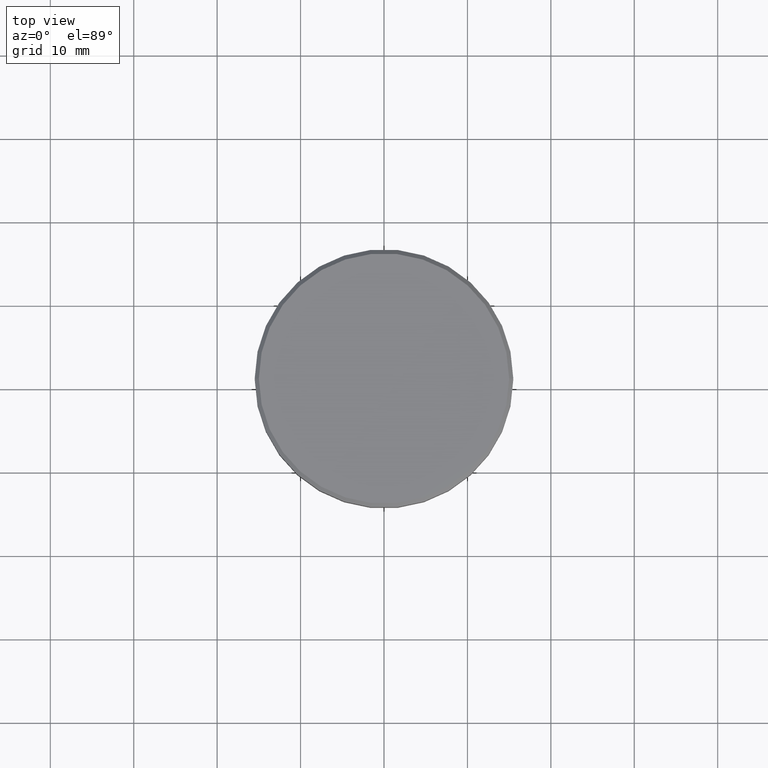
[diagram: clean part render]
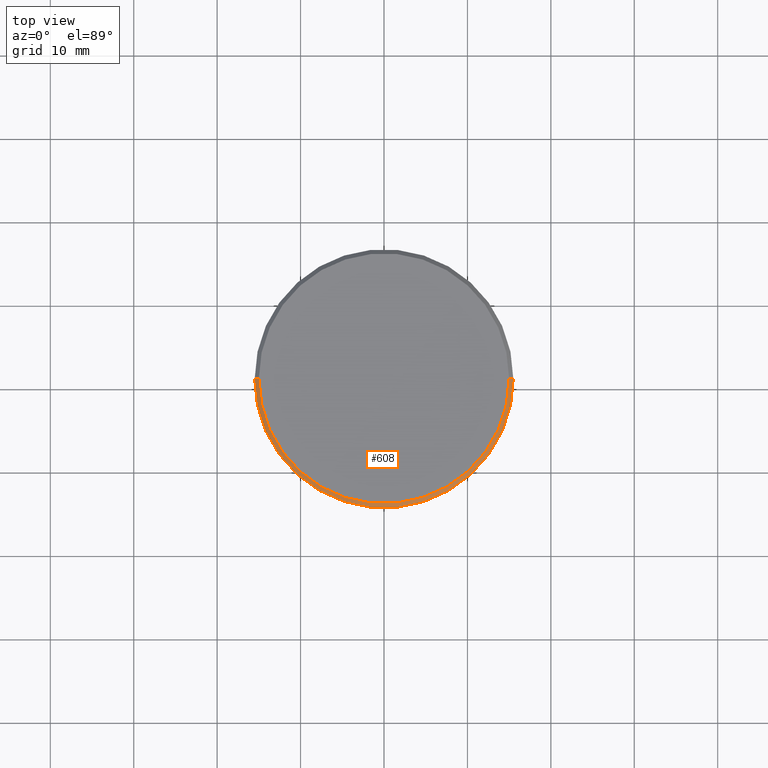
[diagram: same view with one face highlighted and labeled with its STEP entity id]
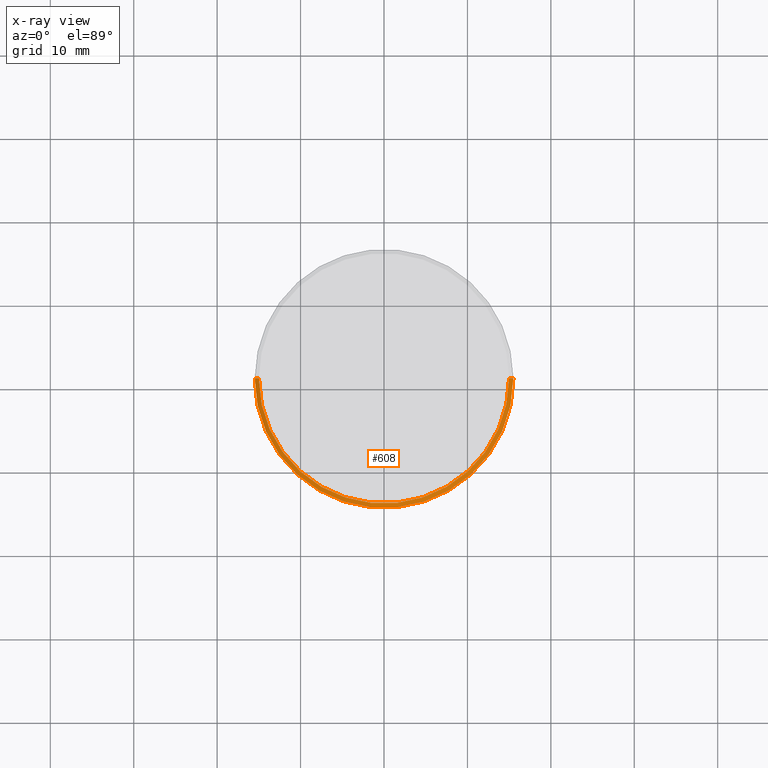
[diagram: x-ray of the same camera — body ghosted, the highlighted face saturated]
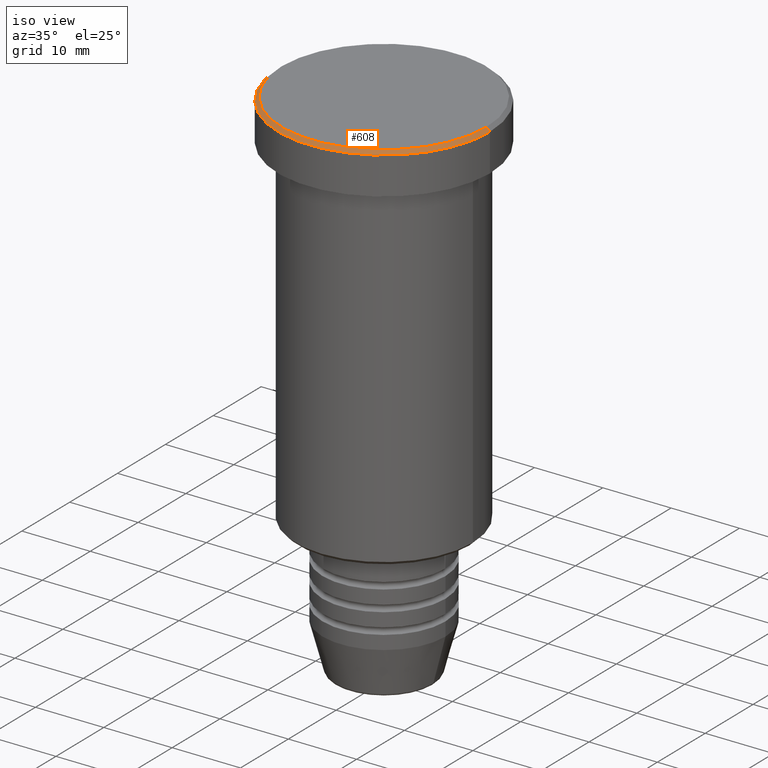
[diagram: same view with one face highlighted and labeled with its STEP entity id]
A machine part, top view. The second image highlights one B-rep face of the part: STEP entity #608.
The next image is the same camera in x-ray: the body ghosted, the highlighted face saturated — about 0% of this face is hidden behind the body in this view.
A second angle (iso view) of the same face is appended — the face is thin or edge-on in the first view.
In plain terms, the highlighted conical surface has half-angle 45 deg.
Its self-contained STEP definition (entity closure, byte-faithful):
#59 = AXIS2_PLACEMENT_3D ( 'NONE', #505, #1012, #856 ) ;
#64 = VERTEX_POINT ( 'NONE', #67 ) ;
#65 = DIRECTION ( 'NONE',  ( -0.000000000000000000, -0.000000000000000000, 1.000000000000000000 ) ) ;
#67 = CARTESIAN_POINT ( 'NONE',  ( -15.00000000000001421, 0.000000000000000000, 0.000000000000000000 ) ) ;
#71 = EDGE_CURVE ( 'NONE', #325, #228, #622, .T. ) ;
#76 = CARTESIAN_POINT ( 'NONE',  ( -15.50000000000000000, 1.898202538678397557E-15, -0.4999999999999987232 ) ) ;
#84 = CARTESIAN_POINT ( 'NONE',  ( 15.50000000000000000, 0.000000000000000000, -0.4999999999999987232 ) ) ;
#93 = ORIENTED_EDGE ( 'NONE', *, *, #441, .T. ) ;
#130 = CARTESIAN_POINT ( 'NONE',  ( -15.00000000000001421, 0.000000000000000000, 0.000000000000000000 ) ) ;
#157 = AXIS2_PLACEMENT_3D ( 'NONE', #432, #241, #619 ) ;
#158 = ORIENTED_EDGE ( 'NONE', *, *, #583, .F. ) ;
#203 = DIRECTION ( 'NONE',  ( -0.7071067811865389130, 0.000000000000000000, -0.7071067811865561215 ) ) ;
#206 = AXIS2_PLACEMENT_3D ( 'NONE', #1059, #65, #683 ) ;
#228 = VERTEX_POINT ( 'NONE', #84 ) ;
#241 = DIRECTION ( 'NONE',  ( 0.000000000000000000, 0.000000000000000000, -1.000000000000000000 ) ) ;
#254 = DIRECTION ( 'NONE',  ( 0.7071067811865389130, 8.659560562354828088E-17, -0.7071067811865561215 ) ) ;
#292 = EDGE_LOOP ( 'NONE', ( #538, #158, #93, #1180 ) ) ;
#313 = VERTEX_POINT ( 'NONE', #76 ) ;
#325 = VERTEX_POINT ( 'NONE', #1103 ) ;
#430 = CIRCLE ( 'NONE', #206, 15.00000000000001421 ) ;
#432 = CARTESIAN_POINT ( 'NONE',  ( 0.000000000000000000, 0.000000000000000000, 0.000000000000000000 ) ) ;
#441 = EDGE_CURVE ( 'NONE', #64, #313, #571, .T. ) ;
#499 = VECTOR ( 'NONE', #254, 1000.000000000000000 ) ;
#505 = CARTESIAN_POINT ( 'NONE',  ( 0.000000000000000000, 0.000000000000000000, -0.4999999999999987232 ) ) ;
#507 = CARTESIAN_POINT ( 'NONE',  ( 15.00000000000001421, 1.836970198721031561E-15, 0.000000000000000000 ) ) ;
#521 = FACE_OUTER_BOUND ( 'NONE', #292, .T. ) ;
#538 = ORIENTED_EDGE ( 'NONE', *, *, #71, .F. ) ;
#571 = LINE ( 'NONE', #130, #912 ) ;
#583 = EDGE_CURVE ( 'NONE', #64, #325, #430, .T. ) ;
#608 = ADVANCED_FACE ( 'NONE', ( #521 ), #712, .T. ) ;
#619 = DIRECTION ( 'NONE',  ( -1.000000000000000000, 0.000000000000000000, 0.000000000000000000 ) ) ;
#622 = LINE ( 'NONE', #507, #499 ) ;
#678 = CIRCLE ( 'NONE', #59, 15.50000000000000000 ) ;
#683 = DIRECTION ( 'NONE',  ( 1.000000000000000000, 0.000000000000000000, 0.000000000000000000 ) ) ;
#712 = CONICAL_SURFACE ( 'NONE', #157, 15.00000000000001421, 0.7853981633974361776 ) ;
#829 = EDGE_CURVE ( 'NONE', #228, #313, #678, .T. ) ;
#856 = DIRECTION ( 'NONE',  ( 1.000000000000000000, 0.000000000000000000, 0.000000000000000000 ) ) ;
#912 = VECTOR ( 'NONE', #203, 1000.000000000000000 ) ;
#1012 = DIRECTION ( 'NONE',  ( 0.000000000000000000, 0.000000000000000000, -1.000000000000000000 ) ) ;
#1059 = CARTESIAN_POINT ( 'NONE',  ( 0.000000000000000000, 0.000000000000000000, 0.000000000000000000 ) ) ;
#1103 = CARTESIAN_POINT ( 'NONE',  ( 15.00000000000001421, 1.867586368699714559E-15, 0.000000000000000000 ) ) ;
#1180 = ORIENTED_EDGE ( 'NONE', *, *, #829, .F. ) ;